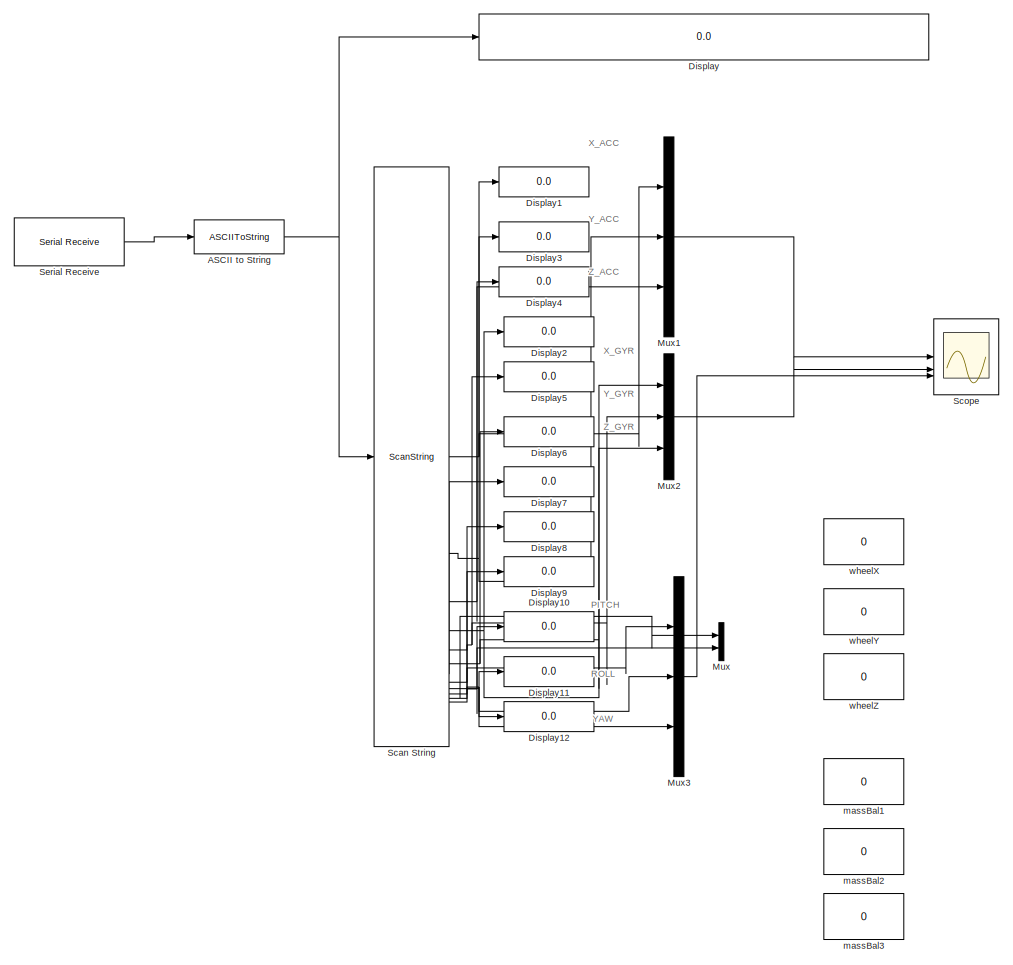
[diagram: root canvas - part 1/3, middle right region]
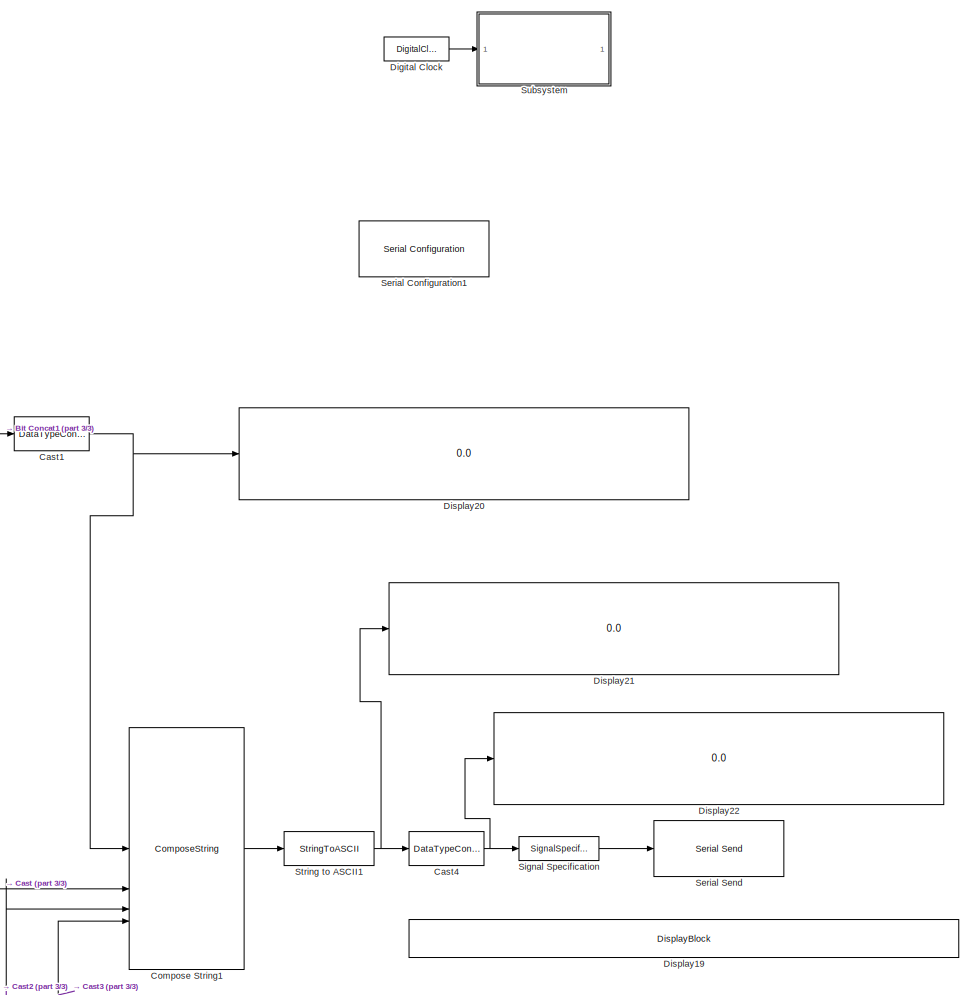
[diagram: root canvas - part 2/3, center side, full height]
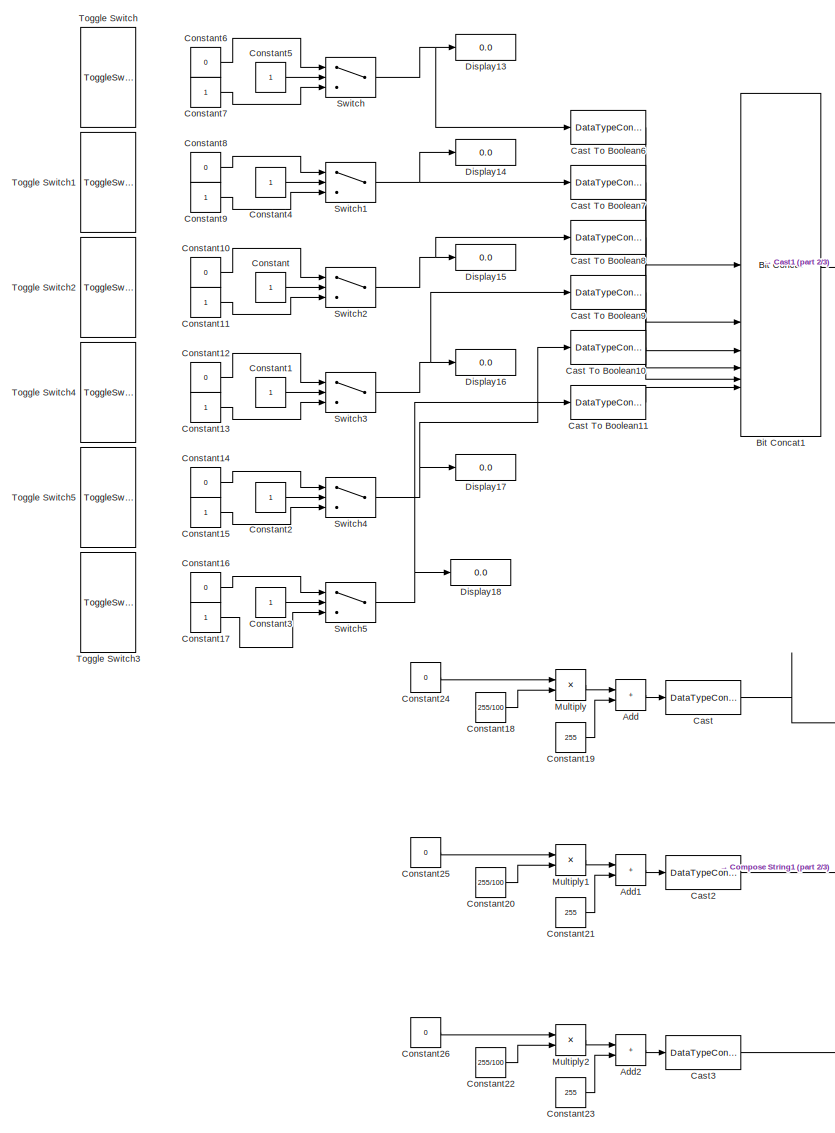
[diagram: root canvas - part 3/3, left side, full height]
MODEL slx_976228f7c1b7
KIND model
CONFIG AbsTol = auto
CONFIG EnableMultiTasking = on
CONFIG FixedStep = .01
CONFIG MaxStep = auto
CONFIG MinStep = auto
CONFIG RelTol = 1e-3
CONFIG SampleTimeConstraint = Unconstrained
CONFIG SolverName = FixedStepAuto
CONFIG StartTime = 0.0
CONFIG StopTime = 100
BLOCK [ASCIIToString] ASCII to String
BLOCK [Sum] Add
  IconShape = rectangular
BLOCK [Sum] Add1
  IconShape = rectangular
BLOCK [Sum] Add2
  IconShape = rectangular
BLOCK [Reference] Bit Concat1  REF=hdlsllib/Logic and Bit
Operations/Bit Concat
  SourceBlock = hdlsllib/Logic and Bit\nOperations/Bit Concat
  SourceType = Bit Concat
BLOCK [DataTypeConversion] Cast
  OutDataTypeStr = int16
  RndMeth = Floor
  SaturateOnIntegerOverflow = off
BLOCK [DataTypeConversion] Cast To Boolean10
  OutDataTypeStr = boolean
  RndMeth = Floor
  SaturateOnIntegerOverflow = off
BLOCK [DataTypeConversion] Cast To Boolean11
  OutDataTypeStr = boolean
  RndMeth = Floor
  SaturateOnIntegerOverflow = off
BLOCK [DataTypeConversion] Cast To Boolean6
  OutDataTypeStr = boolean
  RndMeth = Floor
  SaturateOnIntegerOverflow = off
BLOCK [DataTypeConversion] Cast To Boolean7
  OutDataTypeStr = boolean
  RndMeth = Floor
  SaturateOnIntegerOverflow = off
BLOCK [DataTypeConversion] Cast To Boolean8
  OutDataTypeStr = boolean
  RndMeth = Floor
  SaturateOnIntegerOverflow = off
BLOCK [DataTypeConversion] Cast To Boolean9
  OutDataTypeStr = boolean
  RndMeth = Floor
  SaturateOnIntegerOverflow = off
BLOCK [DataTypeConversion] Cast1
  OutDataTypeStr = int8
  RndMeth = Floor
  SaturateOnIntegerOverflow = off
BLOCK [DataTypeConversion] Cast2
  OutDataTypeStr = int16
  RndMeth = Floor
  SaturateOnIntegerOverflow = off
BLOCK [DataTypeConversion] Cast3
  OutDataTypeStr = int16
  RndMeth = Floor
  SaturateOnIntegerOverflow = off
BLOCK [DataTypeConversion] Cast4
  OutDataTypeStr = int8
  RndMeth = Floor
  SaturateOnIntegerOverflow = off
BLOCK [ComposeString] Compose String1
  Format = "%02d;%03d;%03d;%03d\n"
BLOCK [Constant] Constant
BLOCK [Constant] Constant1
BLOCK [Constant] Constant10
  Value = 0
BLOCK [Constant] Constant11
BLOCK [Constant] Constant12
  Value = 0
BLOCK [Constant] Constant13
BLOCK [Constant] Constant14
  Value = 0
BLOCK [Constant] Constant15
BLOCK [Constant] Constant16
  Value = 0
BLOCK [Constant] Constant17
BLOCK [Constant] Constant18
  Value = 255/100
BLOCK [Constant] Constant19
  Value = 255
BLOCK [Constant] Constant2
BLOCK [Constant] Constant20
  Value = 255/100
BLOCK [Constant] Constant21
  Value = 255
BLOCK [Constant] Constant22
  Value = 255/100
BLOCK [Constant] Constant23
  Value = 255
BLOCK [Constant] Constant24
  Value = 0
BLOCK [Constant] Constant25
  Value = 0
BLOCK [Constant] Constant26
  Value = 0
BLOCK [Constant] Constant3
BLOCK [Constant] Constant4
BLOCK [Constant] Constant5
BLOCK [Constant] Constant6
  Value = 0
BLOCK [Constant] Constant7
BLOCK [Constant] Constant8
  Value = 0
BLOCK [Constant] Constant9
BLOCK [DigitalClock] Digital Clock
BLOCK [Display] Display
  Decimation = 1
BLOCK [Display] Display1
  Decimation = 1
BLOCK [Display] Display10
  Decimation = 1
BLOCK [Display] Display11
  Decimation = 1
BLOCK [Display] Display12
  Decimation = 1
BLOCK [Display] Display13
  Decimation = 1
BLOCK [Display] Display14
  Decimation = 1
BLOCK [Display] Display15
  Decimation = 1
BLOCK [Display] Display16
  Decimation = 1
BLOCK [Display] Display17
  Decimation = 1
BLOCK [Display] Display18
  Decimation = 1
BLOCK [DisplayBlock] Display19
  Format = long
  LabelPosition = Hide
  Transparency = 1
BLOCK [Display] Display2
  Decimation = 1
BLOCK [Display] Display20
  Decimation = 1
BLOCK [Display] Display21
  Decimation = 1
BLOCK [Display] Display22
  Decimation = 1
BLOCK [Display] Display3
  Decimation = 1
BLOCK [Display] Display4
  Decimation = 1
BLOCK [Display] Display5
  Decimation = 1
BLOCK [Display] Display6
  Decimation = 1
BLOCK [Display] Display7
  Decimation = 1
BLOCK [Display] Display8
  Decimation = 1
BLOCK [Display] Display9
  Decimation = 1
BLOCK [Product] Multiply
BLOCK [Product] Multiply1
BLOCK [Product] Multiply2
BLOCK [Mux] Mux
  DisplayOption = bar
  Inputs = 2
BLOCK [Mux] Mux1
  DisplayOption = bar
  Inputs = 3
BLOCK [Mux] Mux2
  DisplayOption = bar
  Inputs = 3
BLOCK [Mux] Mux3
  DisplayOption = bar
  Inputs = 3
BLOCK [ScanString] Scan String
  Format = "%f,%f,%f,%f,%f,%f,%f,%f,%f,%f,%f,%f"
BLOCK [Scope] Scope
  Floating = off
  NumInputPorts = 3
  ScopeSpecificationString = Simulink.scopes.TimeScopeBlockCfg('CurrentConfiguration', extmgr.ConfigurationSet(extmgr.Configuration('Core','General UI',true),extmgr.Configuration('Core','Source UI',true),extmgr.Configuration('Sources','WiredSimulink',true),extmgr.Configuration('Visuals','Time Domain',true,'SerializedDisplays',{struct('MinYLimReal','-11.18625','MaxYLimReal','94.57625','YLabelReal','','MinYLimMag','0.00000','Ma...<+3614ch>
BLOCK [Reference] Serial Configuration1  REF=instrumentseriallib/Serial Configuration
  LibrarySourceBlock = instrumentlib/Serial Configuration
  Priority = -200000
  SourceBlock = instrumentseriallib/Serial Configuration
  SourceType = system.SerialConfiguration
BLOCK [Reference] Serial Receive  REF=instrumentseriallib/Serial Receive
  LibrarySourceBlock = instrumentlib/Serial Receive
  SourceBlock = instrumentseriallib/Serial Receive
  SourceType = system.SerialReceive
BLOCK [Reference] Serial Send  REF=instrumentseriallib/Serial Send
  LibrarySourceBlock = instrumentlib/Serial Send
  SourceBlock = instrumentseriallib/Serial Send
  SourceType = system.SerialSend
BLOCK [SignalSpecification] Signal Specification
  LockScale = on
  SampleTime = .1
BLOCK [StringToASCII] String to ASCII1
  OutputVectorSize = 15
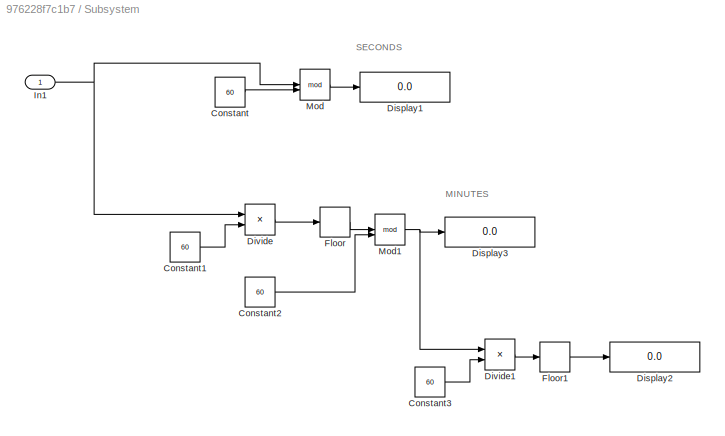
BLOCK [SubSystem] Subsystem
BLOCK [Constant] Subsystem/Constant
  Value = 60
BLOCK [Constant] Subsystem/Constant1
  Value = 60
BLOCK [Constant] Subsystem/Constant2
  Value = 60
BLOCK [Constant] Subsystem/Constant3
  Value = 60
BLOCK [Display] Subsystem/Display1
  Decimation = 1
BLOCK [Display] Subsystem/Display2
  Decimation = 1
BLOCK [Display] Subsystem/Display3
  Decimation = 1
BLOCK [Product] Subsystem/Divide
  Inputs = */
BLOCK [Product] Subsystem/Divide1
  Inputs = */
BLOCK [Rounding] Subsystem/Floor
BLOCK [Rounding] Subsystem/Floor1
BLOCK [Inport] Subsystem/In1
BLOCK [Math] Subsystem/Mod
  Operator = mod
  SignedPower = on
BLOCK [Math] Subsystem/Mod1
  Operator = mod
  SignedPower = on
BLOCK [Switch] Switch
  Criteria = u2 > Threshold
  InputSameDT = off
  SaturateOnIntegerOverflow = off
BLOCK [Switch] Switch1
  Criteria = u2 > Threshold
  InputSameDT = off
  SaturateOnIntegerOverflow = off
BLOCK [Switch] Switch2
  Criteria = u2 > Threshold
  InputSameDT = off
  SaturateOnIntegerOverflow = off
BLOCK [Switch] Switch3
  Criteria = u2 > Threshold
  InputSameDT = off
  SaturateOnIntegerOverflow = off
BLOCK [Switch] Switch4
  Criteria = u2 > Threshold
  InputSameDT = off
  SaturateOnIntegerOverflow = off
BLOCK [Switch] Switch5
  Criteria = u2 > Threshold
  InputSameDT = off
  SaturateOnIntegerOverflow = off
BLOCK [ToggleSwitchBlock] Toggle Switch
BLOCK [ToggleSwitchBlock] Toggle Switch1
BLOCK [ToggleSwitchBlock] Toggle Switch2
BLOCK [ToggleSwitchBlock] Toggle Switch3
BLOCK [ToggleSwitchBlock] Toggle Switch4
BLOCK [ToggleSwitchBlock] Toggle Switch5
BLOCK [Constant] massBal1
  Commented = on
  Value = 0
BLOCK [Constant] massBal2
  Commented = on
  Value = 0
BLOCK [Constant] massBal3
  Commented = on
  Value = 0
BLOCK [Constant] wheelX
  Commented = on
  Value = 0
BLOCK [Constant] wheelY
  Commented = on
  Value = 0
BLOCK [Constant] wheelZ
  Commented = on
  Value = 0
ANNOTATION (root): PITCH
ANNOTATION (root): ROLL
ANNOTATION (root): X_ACC
ANNOTATION (root): X_GYR
ANNOTATION (root): YAW
ANNOTATION (root): Y_ACC
ANNOTATION (root): Y_GYR
ANNOTATION (root): Z_ACC
ANNOTATION (root): Z_GYR
ANNOTATION Subsystem: MINUTES
ANNOTATION Subsystem: SECONDS
NET ASCII to String:1 -> Display:1, Scan String:1
LINE Add1:1 -> Cast2:1
LINE Add2:1 -> Cast3:1
LINE Add:1 -> Cast:1
LINE Bit Concat1:1 -> Cast1:1
LINE Cast To Boolean10:1 -> Bit Concat1:5
LINE Cast To Boolean11:1 -> Bit Concat1:6
LINE Cast To Boolean6:1 -> Bit Concat1:1
LINE Cast To Boolean7:1 -> Bit Concat1:2
LINE Cast To Boolean8:1 -> Bit Concat1:3
LINE Cast To Boolean9:1 -> Bit Concat1:4
NET Cast1:1 -> Compose String1:1, Display20:1
LINE Cast2:1 -> Compose String1:3
LINE Cast3:1 -> Compose String1:4
NET Cast4:1 -> Display22:1, Signal Specification:1
LINE Cast:1 -> Compose String1:2
LINE Compose String1:1 -> String to ASCII1:1
LINE Constant10:1 -> Switch2:1
LINE Constant11:1 -> Switch2:3
LINE Constant12:1 -> Switch3:1
LINE Constant13:1 -> Switch3:3
LINE Constant14:1 -> Switch4:1
LINE Constant15:1 -> Switch4:3
LINE Constant16:1 -> Switch5:1
LINE Constant17:1 -> Switch5:3
LINE Constant18:1 -> Multiply:2
LINE Constant19:1 -> Add:2
LINE Constant1:1 -> Switch3:2
LINE Constant20:1 -> Multiply1:2
LINE Constant21:1 -> Add1:2
LINE Constant22:1 -> Multiply2:2
LINE Constant23:1 -> Add2:2
LINE Constant24:1 -> Multiply:1
LINE Constant25:1 -> Multiply1:1
LINE Constant26:1 -> Multiply2:1
LINE Constant2:1 -> Switch4:2
LINE Constant3:1 -> Switch5:2
LINE Constant4:1 -> Switch1:2
LINE Constant5:1 -> Switch:2
LINE Constant6:1 -> Switch:1
LINE Constant7:1 -> Switch:3
LINE Constant8:1 -> Switch1:1
LINE Constant9:1 -> Switch1:3
LINE Constant:1 -> Switch2:2
LINE Digital Clock:1 -> Subsystem:1
LINE Multiply1:1 -> Add1:1
LINE Multiply2:1 -> Add2:1
LINE Multiply:1 -> Add:1
LINE Mux1:1 -> Scope:1
LINE Mux2:1 -> Scope:2
LINE Mux3:1 -> Scope:3
NET Scan String:1 -> Display1:1, Mux1:1
NET Scan String:10 -> Display10:1, Mux3:1, Mux:2
NET Scan String:11 -> Display11:1, Mux3:2, Mux:1
NET Scan String:12 -> Display12:1, Mux3:3
NET Scan String:2 -> Display3:1, Mux1:2
NET Scan String:3 -> Display4:1, Mux1:3
NET Scan String:4 -> Display2:1, Mux2:1
NET Scan String:5 -> Display5:1, Mux2:2
NET Scan String:6 -> Display6:1, Mux2:3
LINE Scan String:7 -> Display7:1
LINE Scan String:8 -> Display8:1
LINE Scan String:9 -> Display9:1
LINE Serial Receive:1 -> ASCII to String:1
LINE Signal Specification:1 -> Serial Send:1
NET String to ASCII1:1 -> Cast4:1, Display21:1
LINE Subsystem/Constant1:1 -> Subsystem/Divide:2
LINE Subsystem/Constant2:1 -> Subsystem/Mod1:2
LINE Subsystem/Constant3:1 -> Subsystem/Divide1:2
LINE Subsystem/Constant:1 -> Subsystem/Mod:2
LINE Subsystem/Divide1:1 -> Subsystem/Floor1:1
LINE Subsystem/Divide:1 -> Subsystem/Floor:1
LINE Subsystem/Floor1:1 -> Subsystem/Display2:1
LINE Subsystem/Floor:1 -> Subsystem/Mod1:1
NET Subsystem/In1:1 -> Subsystem/Divide:1, Subsystem/Mod:1
NET Subsystem/Mod1:1 -> Subsystem/Display3:1, Subsystem/Divide1:1
LINE Subsystem/Mod:1 -> Subsystem/Display1:1
NET Switch1:1 -> Cast To Boolean7:1, Display14:1
NET Switch2:1 -> Cast To Boolean8:1, Display15:1
NET Switch3:1 -> Cast To Boolean9:1, Display16:1
NET Switch4:1 -> Cast To Boolean10:1, Display17:1
NET Switch5:1 -> Cast To Boolean11:1, Display18:1
NET Switch:1 -> Cast To Boolean6:1, Display13:1
note: NET lines group one-source signal fan-out (src -> all destinations, sorted); 1:1 wires keep LINE
